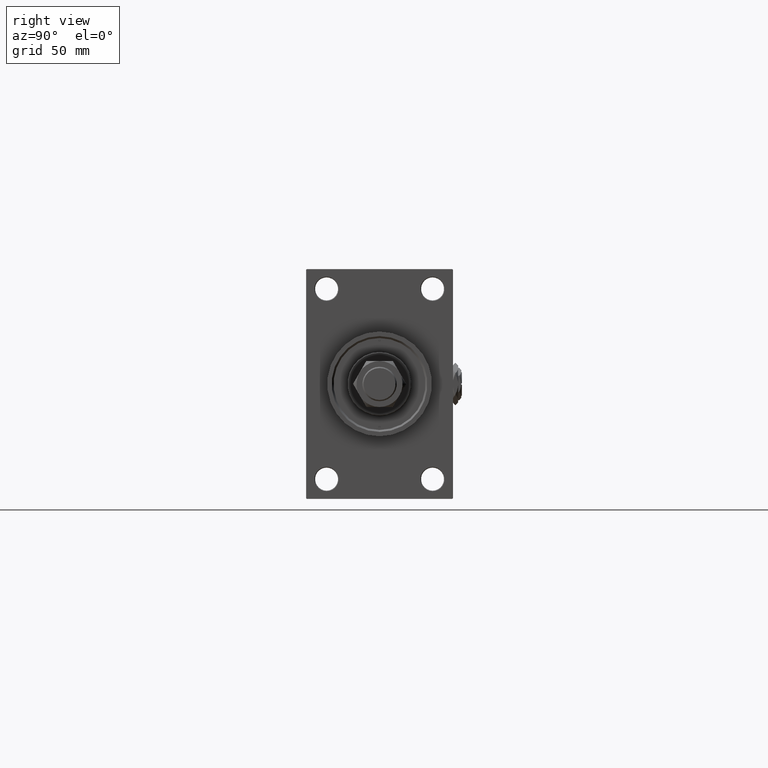
[diagram: clean part render]
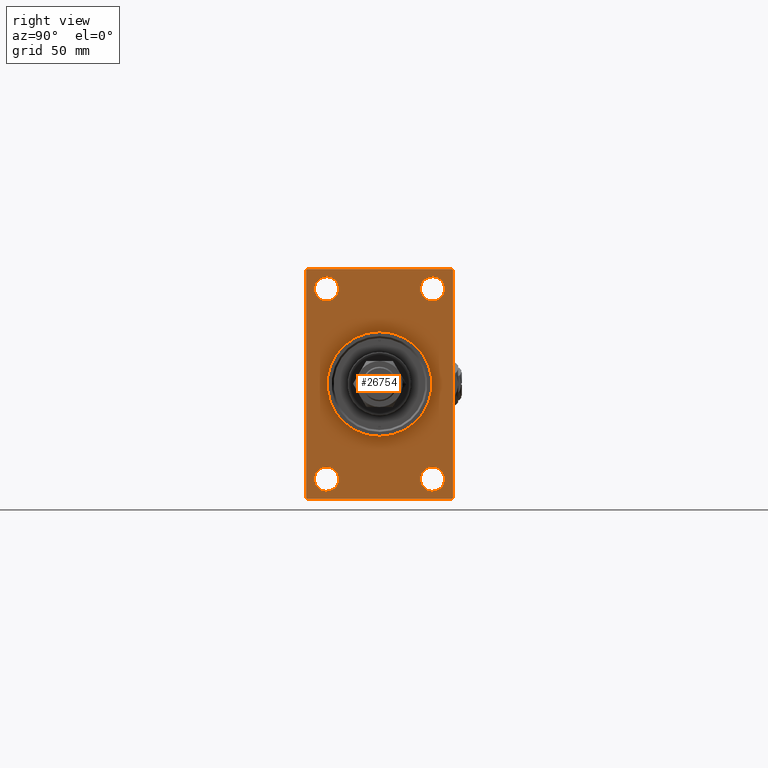
[diagram: same view with one face highlighted and labeled with its STEP entity id]
A machine part, right view. The second image highlights one B-rep face of the part: STEP entity #26754.
In plain terms, the highlighted planar face has unit normal (-1, 0, 0).
Its self-contained STEP definition (entity closure, byte-faithful):
#422 = CIRCLE ( 'NONE', #20465, 9.500000000000008882 ) ;
#813 = LINE ( 'NONE', #37645, #46607 ) ;
#1005 = CARTESIAN_POINT ( 'NONE',  ( 388.9999999999999432, 41.50000000000000711, 74.50000000000001421 ) ) ;
#1102 = VERTEX_POINT ( 'NONE', #35546 ) ;
#1125 = DIRECTION ( 'NONE',  ( 0.000000000000000000, -1.000000000000000000, -1.206764157201257045E-16 ) ) ;
#1364 = ORIENTED_EDGE ( 'NONE', *, *, #39182, .F. ) ;
#1655 = DIRECTION ( 'NONE',  ( -1.000000000000000000, 0.000000000000000000, -0.000000000000000000 ) ) ;
#2206 = CARTESIAN_POINT ( 'NONE',  ( 388.9999999999999432, 41.50000000000000711, -64.99999999999998579 ) ) ;
#2251 = CARTESIAN_POINT ( 'NONE',  ( 388.9999999999999432, -57.00000000000007105, 89.99999999999997158 ) ) ;
#2345 = ORIENTED_EDGE ( 'NONE', *, *, #33302, .T. ) ;
#2346 = PLANE ( 'NONE',  #16570 ) ;
#2467 = VERTEX_POINT ( 'NONE', #42240 ) ;
#2986 = CARTESIAN_POINT ( 'NONE',  ( 388.9999999999999432, -41.49999999999999289, 74.50000000000001421 ) ) ;
#3358 = CARTESIAN_POINT ( 'NONE',  ( 388.9999999999999432, -41.49999999999999289, -74.49999999999998579 ) ) ;
#3419 = CIRCLE ( 'NONE', #32630, 9.500000000000008882 ) ;
#3511 = DIRECTION ( 'NONE',  ( -1.000000000000000000, 0.000000000000000000, -0.000000000000000000 ) ) ;
#3564 = CARTESIAN_POINT ( 'NONE',  ( 388.9999999999999432, 57.49999999999997158, 89.99999999999998579 ) ) ;
#4712 = EDGE_LOOP ( 'NONE', ( #21827, #13919 ) ) ;
#4750 = VERTEX_POINT ( 'NONE', #11740 ) ;
#5068 = ORIENTED_EDGE ( 'NONE', *, *, #15281, .F. ) ;
#5106 = VERTEX_POINT ( 'NONE', #33352 ) ;
#5684 = VERTEX_POINT ( 'NONE', #43976 ) ;
#6266 = FACE_OUTER_BOUND ( 'NONE', #18879, .T. ) ;
#7238 = LINE ( 'NONE', #19009, #19108 ) ;
#7497 = DIRECTION ( 'NONE',  ( 0.000000000000000000, 0.7071067811865965336, -0.7071067811864985009 ) ) ;
#7739 = CIRCLE ( 'NONE', #12733, 9.500000000000008882 ) ;
#7784 = DIRECTION ( 'NONE',  ( -1.000000000000000000, 0.000000000000000000, -0.000000000000000000 ) ) ;
#7792 = AXIS2_PLACEMENT_3D ( 'NONE', #31772, #36918, #28837 ) ;
#8233 = ORIENTED_EDGE ( 'NONE', *, *, #22340, .T. ) ;
#8901 = DIRECTION ( 'NONE',  ( -0.000000000000000000, 0.7071067811865573427, 0.7071067811865378028 ) ) ;
#9664 = ORIENTED_EDGE ( 'NONE', *, *, #43437, .T. ) ;
#9991 = EDGE_CURVE ( 'NONE', #39480, #49801, #11055, .T. ) ;
#10224 = VERTEX_POINT ( 'NONE', #27789 ) ;
#11055 = LINE ( 'NONE', #26247, #41898 ) ;
#11304 = CIRCLE ( 'NONE', #39648, 41.00000000000000000 ) ;
#11537 = VERTEX_POINT ( 'NONE', #44172 ) ;
#11740 = CARTESIAN_POINT ( 'NONE',  ( 388.9999999999999432, 57.49999999999997868, -89.49999999999995737 ) ) ;
#12504 = DIRECTION ( 'NONE',  ( -1.000000000000000000, 0.000000000000000000, -0.000000000000000000 ) ) ;
#12733 = AXIS2_PLACEMENT_3D ( 'NONE', #21267, #29889, #45811 ) ;
#12816 = ORIENTED_EDGE ( 'NONE', *, *, #36939, .F. ) ;
#12833 = CARTESIAN_POINT ( 'NONE',  ( 388.9999999999999432, -41.49999999999999289, 84.00000000000001421 ) ) ;
#12884 = CARTESIAN_POINT ( 'NONE',  ( 388.9999999999999432, 57.49999999999997868, -90.00000000000000000 ) ) ;
#13020 = EDGE_CURVE ( 'NONE', #2467, #1102, #25426, .T. ) ;
#13109 = EDGE_CURVE ( 'NONE', #25075, #39082, #40328, .T. ) ;
#13147 = CARTESIAN_POINT ( 'NONE',  ( 388.9999999999999432, -41.49999999999999289, -74.49999999999998579 ) ) ;
#13536 = DIRECTION ( 'NONE',  ( 0.000000000000000000, -0.7071067811865474617, 0.7071067811865474617 ) ) ;
#13818 = EDGE_CURVE ( 'NONE', #34721, #45377, #49815, .T. ) ;
#13919 = ORIENTED_EDGE ( 'NONE', *, *, #21651, .T. ) ;
#14946 = ORIENTED_EDGE ( 'NONE', *, *, #27643, .T. ) ;
#15186 = CARTESIAN_POINT ( 'NONE',  ( 388.9999999999999432, 57.49999999999997158, 89.99999999999998579 ) ) ;
#15281 = EDGE_CURVE ( 'NONE', #41603, #30109, #25416, .T. ) ;
#15326 = DIRECTION ( 'NONE',  ( 0.000000000000000000, 3.854941057726238467E-17, -1.000000000000000000 ) ) ;
#16123 = ORIENTED_EDGE ( 'NONE', *, *, #13109, .T. ) ;
#16335 = CIRCLE ( 'NONE', #20509, 9.500000000000008882 ) ;
#16570 = AXIS2_PLACEMENT_3D ( 'NONE', #18284, #30311, #50383 ) ;
#18140 = EDGE_CURVE ( 'NONE', #11537, #33780, #16335, .T. ) ;
#18284 = CARTESIAN_POINT ( 'NONE',  ( 388.9999999999999432, 0.000000000000000000, 0.000000000000000000 ) ) ;
#18879 = EDGE_LOOP ( 'NONE', ( #8233, #48655, #38895, #14946, #12816, #24886, #23354, #39799 ) ) ;
#19009 = CARTESIAN_POINT ( 'NONE',  ( 388.9999999999999432, -57.00000000000002132, -90.00000000000001421 ) ) ;
#19074 = CARTESIAN_POINT ( 'NONE',  ( 388.9999999999999432, -41.49999999999999289, -64.99999999999997158 ) ) ;
#19108 = VECTOR ( 'NONE', #7497, 1000.000000000000114 ) ;
#19801 = CIRCLE ( 'NONE', #25678, 9.500000000000008882 ) ;
#20422 = CARTESIAN_POINT ( 'NONE',  ( 388.9999999999999432, -57.50000000000002132, 89.50000000000002842 ) ) ;
#20465 = AXIS2_PLACEMENT_3D ( 'NONE', #24607, #40532, #28801 ) ;
#20509 = AXIS2_PLACEMENT_3D ( 'NONE', #13147, #1655, #33000 ) ;
#20603 = DIRECTION ( 'NONE',  ( 0.000000000000000000, 0.000000000000000000, 1.000000000000000000 ) ) ;
#21267 = CARTESIAN_POINT ( 'NONE',  ( 388.9999999999999432, -41.49999999999999289, 74.50000000000001421 ) ) ;
#21651 = EDGE_CURVE ( 'NONE', #33780, #11537, #19801, .T. ) ;
#21827 = ORIENTED_EDGE ( 'NONE', *, *, #18140, .T. ) ;
#22340 = EDGE_CURVE ( 'NONE', #49801, #10224, #40499, .T. ) ;
#22429 = AXIS2_PLACEMENT_3D ( 'NONE', #1005, #12504, #20603 ) ;
#22690 = DIRECTION ( 'NONE',  ( 0.000000000000000000, 0.000000000000000000, -1.000000000000000000 ) ) ;
#22724 = FACE_BOUND ( 'NONE', #24745, .T. ) ;
#23026 = CIRCLE ( 'NONE', #34826, 9.500000000000008882 ) ;
#23188 = CARTESIAN_POINT ( 'NONE',  ( 388.9999999999999432, 41.50000000000000711, 65.00000000000000000 ) ) ;
#23354 = ORIENTED_EDGE ( 'NONE', *, *, #26420, .T. ) ;
#23620 = DIRECTION ( 'NONE',  ( 0.000000000000000000, 0.000000000000000000, 1.000000000000000000 ) ) ;
#24607 = CARTESIAN_POINT ( 'NONE',  ( 388.9999999999999432, 41.50000000000000711, -74.50000000000000000 ) ) ;
#24745 = EDGE_LOOP ( 'NONE', ( #2345, #34416 ) ) ;
#24886 = ORIENTED_EDGE ( 'NONE', *, *, #13818, .T. ) ;
#25075 = VERTEX_POINT ( 'NONE', #33624 ) ;
#25416 = CIRCLE ( 'NONE', #30416, 41.00000000000000000 ) ;
#25426 = LINE ( 'NONE', #12884, #35333 ) ;
#25678 = AXIS2_PLACEMENT_3D ( 'NONE', #3358, #7784, #27145 ) ;
#25821 = CARTESIAN_POINT ( 'NONE',  ( 388.9999999999999432, 56.99999999999997158, 89.99999999999998579 ) ) ;
#26247 = CARTESIAN_POINT ( 'NONE',  ( 388.9999999999999432, -57.50000000000002132, 89.50000000000002842 ) ) ;
#26420 = EDGE_CURVE ( 'NONE', #45377, #39480, #42876, .T. ) ;
#26754 = ADVANCED_FACE ( 'NONE', ( #22724, #42050, #34733, #42567, #50632, #6266 ), #2346, .F. ) ;
#27145 = DIRECTION ( 'NONE',  ( 0.000000000000000000, 0.000000000000000000, 1.000000000000000000 ) ) ;
#27643 = EDGE_CURVE ( 'NONE', #2467, #4750, #813, .T. ) ;
#27789 = CARTESIAN_POINT ( 'NONE',  ( 388.9999999999999432, -57.50000000000002132, -89.50000000000002842 ) ) ;
#27939 = EDGE_CURVE ( 'NONE', #39082, #25075, #44938, .T. ) ;
#28339 = CARTESIAN_POINT ( 'NONE',  ( 388.9999999999999432, 41.50000000000000711, -74.50000000000000000 ) ) ;
#28801 = DIRECTION ( 'NONE',  ( 0.000000000000000000, 0.000000000000000000, 1.000000000000000000 ) ) ;
#28837 = DIRECTION ( 'NONE',  ( 0.000000000000000000, 0.000000000000000000, 1.000000000000000000 ) ) ;
#29580 = VECTOR ( 'NONE', #15326, 1000.000000000000000 ) ;
#29889 = DIRECTION ( 'NONE',  ( -1.000000000000000000, 0.000000000000000000, -0.000000000000000000 ) ) ;
#30109 = VERTEX_POINT ( 'NONE', #46382 ) ;
#30311 = DIRECTION ( 'NONE',  ( -1.000000000000000000, 0.000000000000000000, -0.000000000000000000 ) ) ;
#30416 = AXIS2_PLACEMENT_3D ( 'NONE', #40309, #40050, #35883 ) ;
#31073 = EDGE_LOOP ( 'NONE', ( #47401, #16123 ) ) ;
#31541 = DIRECTION ( 'NONE',  ( 1.000000000000000000, 0.000000000000000000, 0.000000000000000000 ) ) ;
#31772 = CARTESIAN_POINT ( 'NONE',  ( 388.9999999999999432, 41.50000000000000711, 74.50000000000001421 ) ) ;
#32208 = EDGE_CURVE ( 'NONE', #47955, #5106, #3419, .T. ) ;
#32404 = VECTOR ( 'NONE', #50192, 1000.000000000000000 ) ;
#32630 = AXIS2_PLACEMENT_3D ( 'NONE', #2986, #42695, #38772 ) ;
#33000 = DIRECTION ( 'NONE',  ( 0.000000000000000000, 0.000000000000000000, 1.000000000000000000 ) ) ;
#33302 = EDGE_CURVE ( 'NONE', #5106, #47955, #7739, .T. ) ;
#33352 = CARTESIAN_POINT ( 'NONE',  ( 388.9999999999999432, -41.49999999999999289, 65.00000000000000000 ) ) ;
#33624 = CARTESIAN_POINT ( 'NONE',  ( 388.9999999999999432, 41.50000000000000711, 84.00000000000001421 ) ) ;
#33699 = CARTESIAN_POINT ( 'NONE',  ( 388.9999999999999432, -57.50000000000002132, 89.99999999999997158 ) ) ;
#33780 = VERTEX_POINT ( 'NONE', #19074 ) ;
#34337 = DIRECTION ( 'NONE',  ( -0.000000000000000000, -0.7071067811865524577, -0.7071067811865426878 ) ) ;
#34416 = ORIENTED_EDGE ( 'NONE', *, *, #32208, .T. ) ;
#34721 = VERTEX_POINT ( 'NONE', #44588 ) ;
#34733 = FACE_BOUND ( 'NONE', #43202, .T. ) ;
#34826 = AXIS2_PLACEMENT_3D ( 'NONE', #28339, #3511, #23620 ) ;
#35210 = CARTESIAN_POINT ( 'NONE',  ( 388.9999999999999432, 0.000000000000000000, 0.000000000000000000 ) ) ;
#35333 = VECTOR ( 'NONE', #1125, 1000.000000000000000 ) ;
#35546 = CARTESIAN_POINT ( 'NONE',  ( 388.9999999999999432, -57.00000000000002132, -90.00000000000001421 ) ) ;
#35657 = VECTOR ( 'NONE', #48590, 1000.000000000000000 ) ;
#35883 = DIRECTION ( 'NONE',  ( 0.000000000000000000, 0.000000000000000000, -1.000000000000000000 ) ) ;
#36918 = DIRECTION ( 'NONE',  ( -1.000000000000000000, 0.000000000000000000, -0.000000000000000000 ) ) ;
#36939 = EDGE_CURVE ( 'NONE', #34721, #4750, #43276, .T. ) ;
#37645 = CARTESIAN_POINT ( 'NONE',  ( 388.9999999999999432, 57.49999999999997868, -89.50000000000001421 ) ) ;
#37862 = VECTOR ( 'NONE', #13536, 1000.000000000000114 ) ;
#38593 = EDGE_CURVE ( 'NONE', #5684, #45585, #422, .T. ) ;
#38772 = DIRECTION ( 'NONE',  ( 0.000000000000000000, 0.000000000000000000, 1.000000000000000000 ) ) ;
#38895 = ORIENTED_EDGE ( 'NONE', *, *, #13020, .F. ) ;
#39082 = VERTEX_POINT ( 'NONE', #23188 ) ;
#39182 = EDGE_CURVE ( 'NONE', #30109, #41603, #11304, .T. ) ;
#39480 = VERTEX_POINT ( 'NONE', #2251 ) ;
#39648 = AXIS2_PLACEMENT_3D ( 'NONE', #35210, #31541, #22690 ) ;
#39799 = ORIENTED_EDGE ( 'NONE', *, *, #9991, .T. ) ;
#40050 = DIRECTION ( 'NONE',  ( 1.000000000000000000, 0.000000000000000000, 0.000000000000000000 ) ) ;
#40309 = CARTESIAN_POINT ( 'NONE',  ( 388.9999999999999432, 0.000000000000000000, 0.000000000000000000 ) ) ;
#40328 = CIRCLE ( 'NONE', #7792, 9.500000000000008882 ) ;
#40499 = LINE ( 'NONE', #33699, #35657 ) ;
#40532 = DIRECTION ( 'NONE',  ( -1.000000000000000000, 0.000000000000000000, -0.000000000000000000 ) ) ;
#41603 = VERTEX_POINT ( 'NONE', #49104 ) ;
#41898 = VECTOR ( 'NONE', #34337, 1000.000000000000000 ) ;
#42050 = FACE_BOUND ( 'NONE', #4712, .T. ) ;
#42240 = CARTESIAN_POINT ( 'NONE',  ( 388.9999999999999432, 56.99999999999997868, -90.00000000000000000 ) ) ;
#42567 = FACE_BOUND ( 'NONE', #31073, .T. ) ;
#42695 = DIRECTION ( 'NONE',  ( -1.000000000000000000, 0.000000000000000000, -0.000000000000000000 ) ) ;
#42876 = LINE ( 'NONE', #15186, #32404 ) ;
#42944 = CARTESIAN_POINT ( 'NONE',  ( 388.9999999999999432, 56.99999999999997158, 89.99999999999998579 ) ) ;
#43202 = EDGE_LOOP ( 'NONE', ( #46734, #9664 ) ) ;
#43276 = LINE ( 'NONE', #3564, #29580 ) ;
#43437 = EDGE_CURVE ( 'NONE', #45585, #5684, #23026, .T. ) ;
#43976 = CARTESIAN_POINT ( 'NONE',  ( 388.9999999999999432, 41.50000000000000711, -84.00000000000000000 ) ) ;
#44172 = CARTESIAN_POINT ( 'NONE',  ( 388.9999999999999432, -41.49999999999999289, -83.99999999999998579 ) ) ;
#44588 = CARTESIAN_POINT ( 'NONE',  ( 388.9999999999999432, 57.49999999999997158, 89.49999999999998579 ) ) ;
#44938 = CIRCLE ( 'NONE', #22429, 9.500000000000008882 ) ;
#45377 = VERTEX_POINT ( 'NONE', #42944 ) ;
#45585 = VERTEX_POINT ( 'NONE', #2206 ) ;
#45811 = DIRECTION ( 'NONE',  ( 0.000000000000000000, 0.000000000000000000, 1.000000000000000000 ) ) ;
#46351 = EDGE_LOOP ( 'NONE', ( #1364, #5068 ) ) ;
#46382 = CARTESIAN_POINT ( 'NONE',  ( 388.9999999999999432, 0.000000000000000000, 41.00000000000000000 ) ) ;
#46607 = VECTOR ( 'NONE', #8901, 1000.000000000000000 ) ;
#46734 = ORIENTED_EDGE ( 'NONE', *, *, #38593, .T. ) ;
#47401 = ORIENTED_EDGE ( 'NONE', *, *, #27939, .T. ) ;
#47955 = VERTEX_POINT ( 'NONE', #12833 ) ;
#48590 = DIRECTION ( 'NONE',  ( 0.000000000000000000, 0.000000000000000000, -1.000000000000000000 ) ) ;
#48655 = ORIENTED_EDGE ( 'NONE', *, *, #50191, .T. ) ;
#49104 = CARTESIAN_POINT ( 'NONE',  ( 388.9999999999999432, 5.021051876504148963E-15, -41.00000000000000000 ) ) ;
#49801 = VERTEX_POINT ( 'NONE', #20422 ) ;
#49815 = LINE ( 'NONE', #25821, #37862 ) ;
#50191 = EDGE_CURVE ( 'NONE', #10224, #1102, #7238, .T. ) ;
#50192 = DIRECTION ( 'NONE',  ( 0.000000000000000000, -1.000000000000000000, -1.206764157201257291E-16 ) ) ;
#50383 = DIRECTION ( 'NONE',  ( -0.000000000000000000, 0.000000000000000000, 1.000000000000000000 ) ) ;
#50632 = FACE_BOUND ( 'NONE', #46351, .T. ) ;